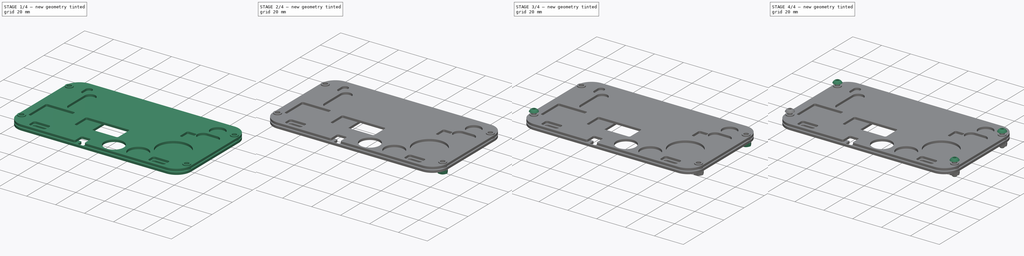
[diagram: build sequence overview — one tinted view per stage of 4, left to right]
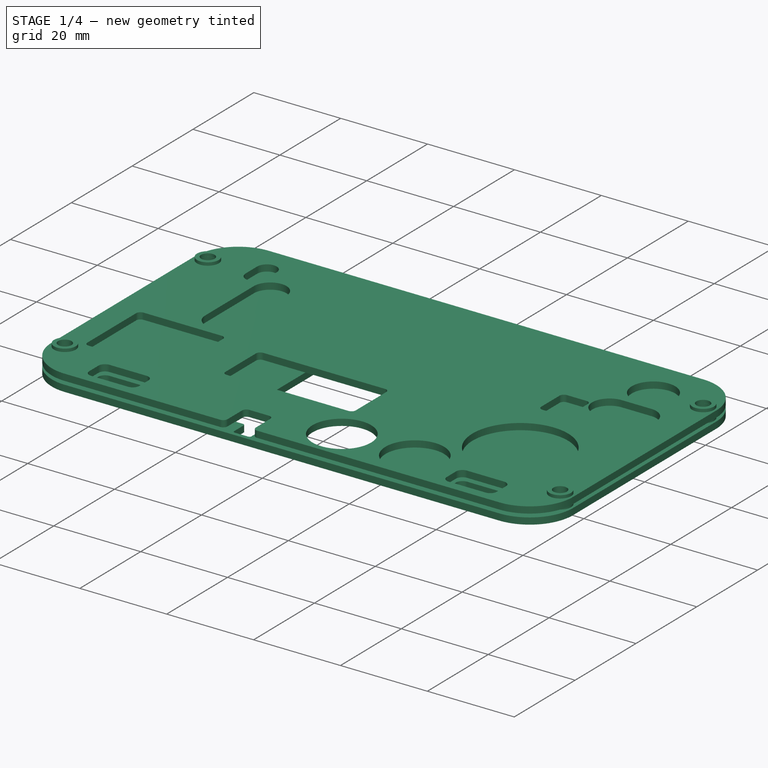
[diagram: stage 1 of 4 — iso view after this stage's code; geometry added in this stage tinted green]
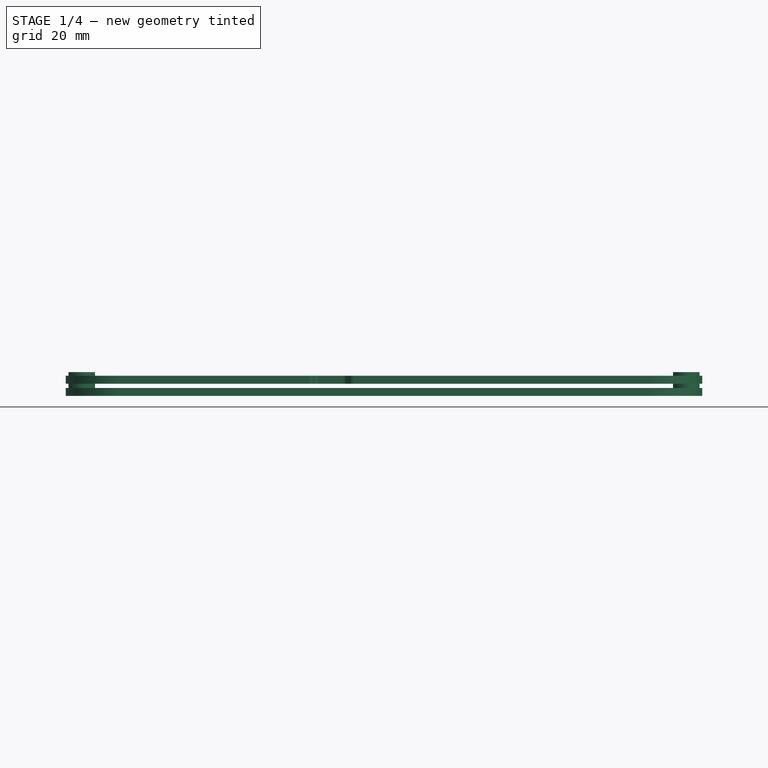
[diagram: stage 1 of 4 — front view after this stage's code; geometry added in this stage tinted green]
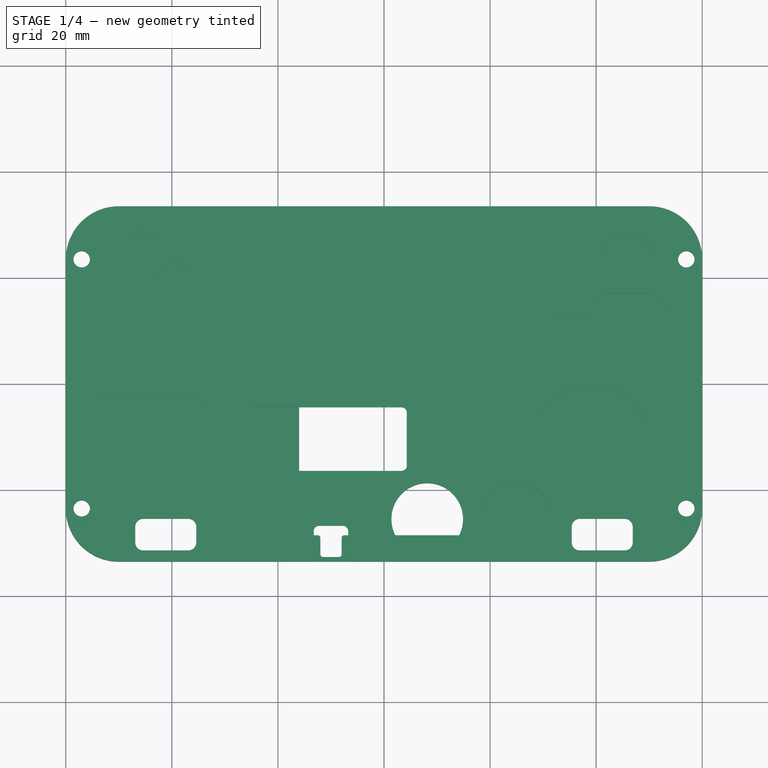
[diagram: stage 1 of 4 — top view after this stage's code; geometry added in this stage tinted green]
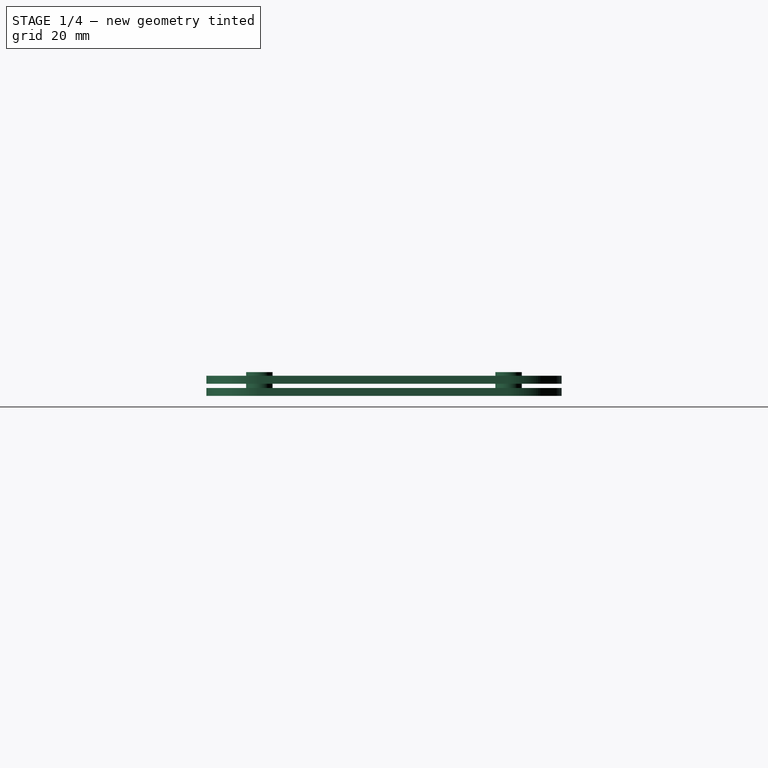
[diagram: stage 1 of 4 — right view after this stage's code; geometry added in this stage tinted green]
FCSTD DOCUMENT  (FreeCAD 0.17R13528 (Git))
Label: badge_case
License: All rights reserved
LicenseURL: http://en.wikipedia.org/wiki/All_rights_reserved
objects: Part::FeaturePython×8, Sketcher::SketchObject×3, Part::Part2DObjectPython×3, PartDesign::Body×2, Part::Extrusion×2, PartDesign::Pad×1, App::VRMLObject×1
note: 20 computed .brp shape members not serialized (recipe doc carries the construction recipe); baked Part::Feature solids carry a one-line shape summary decoded from their .brp

FEATURE [Sketcher::SketchObject] Sketch
  MapMode = 5
  Support = -> [XY_Plane047]
  sketch-geometry (76):
    g0: LineSegment StartX=-50 StartY=33.5 StartZ=0 EndX=50 EndY=33.5 EndZ=0
    g1: LineSegment StartX=60 StartY=23.5 StartZ=0 EndX=60 EndY=-23.5 EndZ=0
    g2: LineSegment StartX=50 StartY=-33.5 StartZ=0 EndX=-5.75 EndY=-33.5 EndZ=0
    g3: LineSegment StartX=-60 StartY=-23.5 StartZ=0 EndX=-60 EndY=23.5 EndZ=0
    g4: ArcOfCircle CenterX=50 CenterY=23.5 CenterZ=0 NormalX=0 NormalY=0 NormalZ=1 AngleXU=0 Radius=10 StartAngle=0 EndAngle=1.5708
    g5: ArcOfCircle CenterX=50 CenterY=-23.5 CenterZ=0 NormalX=0 NormalY=0 NormalZ=1 AngleXU=0 Radius=10 StartAngle=4.71239 EndAngle=6.28319
    g6: ArcOfCircle CenterX=-50 CenterY=-23.5 CenterZ=0 NormalX=0 NormalY=0 NormalZ=1 AngleXU=0 Radius=10 StartAngle=3.14159 EndAngle=4.71239
    g7: ArcOfCircle CenterX=-50 CenterY=23.5 CenterZ=0 NormalX=0 NormalY=0 NormalZ=1 AngleXU=0 Radius=10 StartAngle=1.5708 EndAngle=3.14159
    g8: LineSegment StartX=-12.25 StartY=-26.75 StartZ=0 EndX=-7.75 EndY=-26.75 EndZ=0
    g9: LineSegment StartX=-6.75 StartY=-27.75 StartZ=0 EndX=-6.75 EndY=-32.5 EndZ=0
    g10: LineSegment StartX=-13.25 StartY=-32.5 StartZ=0 EndX=-13.25 EndY=-27.75 EndZ=0
    g11: LineSegment StartX=-14.25 StartY=-33.5 StartZ=0 EndX=-50 EndY=-33.5 EndZ=0
    g12: LineSegment StartX=-53.5 StartY=-2.65 StartZ=0 EndX=-35.5 EndY=-2.65 EndZ=0
    g13: LineSegment StartX=-34.5 StartY=-3.65 StartZ=0 EndX=-34.5 EndY=-19.65 EndZ=0
    g14: LineSegment StartX=-35.5 StartY=-20.65 StartZ=0 EndX=-53.5 EndY=-20.65 EndZ=0
    g15: LineSegment StartX=-54.5 StartY=-19.65 StartZ=0 EndX=-54.5 EndY=-3.65 EndZ=0
    g16: LineSegment StartX=3.3 StartY=-4.4 StartZ=0 EndX=-24.7 EndY=-4.4 EndZ=0
    g17: LineSegment StartX=-25.7 StartY=-5.4 StartZ=0 EndX=-25.7 EndY=-15.4 EndZ=0
    g18: LineSegment StartX=-24.7 StartY=-16.4 StartZ=0 EndX=3.3 EndY=-16.4 EndZ=0
    g19: LineSegment StartX=4.3 StartY=-15.4 StartZ=0 EndX=4.3 EndY=-5.4 EndZ=0
    g20: Circle CenterX=8.15 CenterY=-25.5 CenterZ=0 NormalX=0 NormalY=0 NormalZ=1 AngleXU=0 Radius=6.75
    g21: Circle CenterX=24.95 CenterY=-25.5 CenterZ=0 NormalX=0 NormalY=0 NormalZ=1 AngleXU=0 Radius=6.75
    g22: Circle CenterX=39.25 CenterY=-11.25 CenterZ=0 NormalX=0 NormalY=0 NormalZ=1 AngleXU=0 Radius=11
    g23: ArcOfCircle CenterX=42.75 CenterY=13.1 CenterZ=0 NormalX=0 NormalY=0 NormalZ=1 AngleXU=0 Radius=4 StartAngle=1.5708 EndAngle=4.71239
    g24: ArcOfCircle CenterX=49.5 CenterY=13.1 CenterZ=0 NormalX=0 NormalY=0 NormalZ=1 AngleXU=0 Radius=4 StartAngle=4.71239 EndAngle=7.85398
    g25: LineSegment StartX=42.75 StartY=9.1 StartZ=0 EndX=49.5 EndY=9.1 EndZ=0
    g26: LineSegment StartX=42.75 StartY=17.1 StartZ=0 EndX=49.5 EndY=17.1 EndZ=0
    g27: Circle CenterX=45.75 CenterY=23.25 CenterZ=0 NormalX=0 NormalY=0 NormalZ=1 AngleXU=0 Radius=5
    g28: ArcOfCircle CenterX=-45.5 CenterY=26.5 CenterZ=0 NormalX=0 NormalY=0 NormalZ=1 AngleXU=0 Radius=2.25 StartAngle=0 EndAngle=3.14159
    g29: ArcOfCircle CenterX=-45.5 CenterY=22.75 CenterZ=0 NormalX=0 NormalY=0 NormalZ=1 AngleXU=0 Radius=2.25 StartAngle=3.14159 EndAngle=6.28319
    g30: LineSegment StartX=-47.75 StartY=26.5 StartZ=0 EndX=-47.75 EndY=22.75 EndZ=0
    g31: LineSegment StartX=-43.25 StartY=26.5 StartZ=0 EndX=-43.25 EndY=22.75 EndZ=0
    g32: ArcOfCircle CenterX=-39.5 CenterY=3 CenterZ=0 NormalX=0 NormalY=0 NormalZ=1 AngleXU=0 Radius=3.75 StartAngle=3.14159 EndAngle=6.28319
    g33: ArcOfCircle CenterX=-39.5 CenterY=19 CenterZ=0 NormalX=0 NormalY=0 NormalZ=1 AngleXU=0 Radius=3.75 StartAngle=0 EndAngle=3.14159
    g34: LineSegment StartX=-35.75 StartY=3 StartZ=0 EndX=-35.75 EndY=19 EndZ=0
    g35: LineSegment StartX=-43.25 StartY=3 StartZ=0 EndX=-43.25 EndY=19 EndZ=0
    g36: ArcOfCircle CenterX=-24.7 CenterY=-5.4 CenterZ=0 NormalX=0 NormalY=0 NormalZ=1 AngleXU=0 Radius=1 StartAngle=1.5708 EndAngle=3.14159
    g37: ArcOfCircle CenterX=-24.7 CenterY=-15.4 CenterZ=0 NormalX=0 NormalY=0 NormalZ=1 AngleXU=0 Radius=1 StartAngle=3.14159 EndAngle=4.71239
    g38: ArcOfCircle CenterX=3.3 CenterY=-15.4 CenterZ=0 NormalX=0 NormalY=0 NormalZ=1 AngleXU=0 Radius=1 StartAngle=4.71239 EndAngle=6.28319
    g39: ArcOfCircle CenterX=3.3 CenterY=-5.4 CenterZ=0 NormalX=0 NormalY=0 NormalZ=1 AngleXU=0 Radius=1 StartAngle=0 EndAngle=1.5708
    g40: ArcOfCircle CenterX=-53.5 CenterY=-3.65 CenterZ=0 NormalX=0 NormalY=0 NormalZ=1 AngleXU=0 Radius=1 StartAngle=1.5708 EndAngle=3.14159
    g41: ArcOfCircle CenterX=-53.5 CenterY=-19.65 CenterZ=0 NormalX=0 NormalY=0 NormalZ=1 AngleXU=0 Radius=1 StartAngle=3.14159 EndAngle=4.71239
    g42: ArcOfCircle CenterX=-35.5 CenterY=-19.65 CenterZ=0 NormalX=0 NormalY=0 NormalZ=1 AngleXU=0 Radius=1 StartAngle=4.71239 EndAngle=6.28319
    g43: ArcOfCircle CenterX=-35.5 CenterY=-3.65 CenterZ=0 NormalX=0 NormalY=0 NormalZ=1 AngleXU=0 Radius=1 StartAngle=0 EndAngle=1.5708
    g44: ArcOfCircle CenterX=-12.25 CenterY=-27.75 CenterZ=0 NormalX=0 NormalY=0 NormalZ=1 AngleXU=0 Radius=1 StartAngle=1.5708 EndAngle=3.14159
    g45: ArcOfCircle CenterX=-7.75 CenterY=-27.75 CenterZ=0 NormalX=0 NormalY=0 NormalZ=1 AngleXU=0 Radius=1 StartAngle=0 EndAngle=1.5708
    g46: ArcOfCircle CenterX=-14.25 CenterY=-32.5 CenterZ=0 NormalX=0 NormalY=0 NormalZ=1 AngleXU=0 Radius=1 StartAngle=4.71239 EndAngle=6.28319
    g47: ArcOfCircle CenterX=-5.75 CenterY=-32.5 CenterZ=0 NormalX=0 NormalY=0 NormalZ=1 AngleXU=0 Radius=1 StartAngle=3.14159 EndAngle=4.71239
    g48: LineSegment StartX=-45.4 StartY=-25.4 StartZ=0 EndX=-36.9 EndY=-25.4 EndZ=0
    g49: LineSegment StartX=-35.4 StartY=-26.9 StartZ=0 EndX=-35.4 EndY=-29.9 EndZ=0
    g50: LineSegment StartX=-36.9 StartY=-31.4 StartZ=0 EndX=-45.4 EndY=-31.4 EndZ=0
    g51: LineSegment StartX=-46.9 StartY=-29.9 StartZ=0 EndX=-46.9 EndY=-26.9 EndZ=0
    g52: LineSegment StartX=36.9 StartY=-25.4 StartZ=0 EndX=45.4 EndY=-25.4 EndZ=0
    g53: LineSegment StartX=46.9 StartY=-26.9 StartZ=0 EndX=46.9 EndY=-29.9 EndZ=0
    g54: LineSegment StartX=45.4 StartY=-31.4 StartZ=0 EndX=36.9 EndY=-31.4 EndZ=0
    g55: LineSegment StartX=35.4 StartY=-29.9 StartZ=0 EndX=35.4 EndY=-26.9 EndZ=0
    g56: ArcOfCircle CenterX=36.9 CenterY=-26.9 CenterZ=0 NormalX=0 NormalY=0 NormalZ=1 AngleXU=0 Radius=1.5 StartAngle=1.5708 EndAngle=3.14159
    g57: ArcOfCircle CenterX=36.9 CenterY=-29.9 CenterZ=0 NormalX=0 NormalY=0 NormalZ=1 AngleXU=0 Radius=1.5 StartAngle=3.14159 EndAngle=4.71239
    g58: ArcOfCircle CenterX=45.4 CenterY=-29.9 CenterZ=0 NormalX=0 NormalY=0 NormalZ=1 AngleXU=0 Radius=1.5 StartAngle=4.71239 EndAngle=6.28319
    g59: ArcOfCircle CenterX=45.4 CenterY=-26.9 CenterZ=0 NormalX=0 NormalY=0 NormalZ=1 AngleXU=0 Radius=1.5 StartAngle=0 EndAngle=1.5708
    g60: ArcOfCircle CenterX=-45.4 CenterY=-26.9 CenterZ=0 NormalX=0 NormalY=0 NormalZ=1 AngleXU=0 Radius=1.5 StartAngle=1.5708 EndAngle=3.14159
    g61: ArcOfCircle CenterX=-45.4 CenterY=-29.9 CenterZ=0 NormalX=0 NormalY=0 NormalZ=1 AngleXU=0 Radius=1.5 StartAngle=3.14159 EndAngle=4.71239
    g62: ArcOfCircle CenterX=-36.9 CenterY=-29.9 CenterZ=0 NormalX=0 NormalY=0 NormalZ=1 AngleXU=0 Radius=1.5 StartAngle=4.71239 EndAngle=6.28319
    g63: ArcOfCircle CenterX=-36.9 CenterY=-26.9 CenterZ=0 NormalX=0 NormalY=0 NormalZ=1 AngleXU=0 Radius=1.5 StartAngle=0 EndAngle=1.5708
    g64: Circle CenterX=-57 CenterY=23.46 CenterZ=0 NormalX=0 NormalY=0 NormalZ=1 AngleXU=0 Radius=1.55
    g65: Circle CenterX=-57 CenterY=-23.46 CenterZ=0 NormalX=0 NormalY=0 NormalZ=1 AngleXU=0 Radius=1.55
    g66: Circle CenterX=57 CenterY=23.46 CenterZ=0 NormalX=0 NormalY=0 NormalZ=1 AngleXU=0 Radius=1.55
    g67: Circle CenterX=57 CenterY=-23.46 CenterZ=0 NormalX=0 NormalY=0 NormalZ=1 AngleXU=0 Radius=1.55
    g68: LineSegment StartX=33 StartY=13 StartZ=0 EndX=37.5 EndY=13 EndZ=0
    g69: LineSegment StartX=38.5 StartY=12 StartZ=0 EndX=38.5 EndY=6 EndZ=0
    g70: LineSegment StartX=37.5 StartY=5 StartZ=0 EndX=33 EndY=5 EndZ=0
    g71: LineSegment StartX=32 StartY=6 StartZ=0 EndX=32 EndY=12 EndZ=0
    g72: ArcOfCircle CenterX=37.5 CenterY=12 CenterZ=0 NormalX=0 NormalY=0 NormalZ=1 AngleXU=0 Radius=1 StartAngle=0 EndAngle=1.5708
    g73: ArcOfCircle CenterX=37.5 CenterY=6 CenterZ=0 NormalX=0 NormalY=0 NormalZ=1 AngleXU=0 Radius=1 StartAngle=4.71239 EndAngle=6.28319
    g74: ArcOfCircle CenterX=33 CenterY=6 CenterZ=0 NormalX=0 NormalY=0 NormalZ=1 AngleXU=0 Radius=1 StartAngle=3.14159 EndAngle=4.71239
    g75: ArcOfCircle CenterX=33 CenterY=12 CenterZ=0 NormalX=0 NormalY=0 NormalZ=1 AngleXU=0 Radius=1 StartAngle=1.5708 EndAngle=3.14159
  constraints (189):
    c: Horizontal(g0)
    c: Horizontal(g2)
    c: Vertical(g1)
    c: Vertical(g3)
    c: Tangent(g1,g4) = 1.5708
    c: Tangent(g0,g4) = 1.5708
    c: Tangent(g1,g5) = 1.5708
    c: Tangent(g2,g5) = 1.5708
    c: Coincident(g11,g6) = 1.5708
    c: Tangent(g3,g6) = 1.5708
    c: Tangent(g3,g7) = 1.5708
    c: Tangent(g0,g7) = 1.5708
    c: DistanceY(g11,g0) = 67
    c: DistanceX(g3,g1) = 120
    c: Radius(g6) = 10
    c: Equal(g6,g7)
    c: Equal(g6,g4)
    c: Equal(g6,g5)
    c: Symmetric(g0,g11,g-1)
    c: Symmetric(g3,g1,g-2)
    c: Horizontal(g8)
    c: Vertical(g9)
    c: Vertical(g10)
    c: Tangent(g2,g11)
    c: Horizontal(g12)
    c: Horizontal(g14)
    c: Vertical(g13)
    c: Vertical(g15)
    c: Horizontal(g16)
    c: Vertical(g17)
    c: Horizontal(g18)
    c: Vertical(g19)
    c: Radius(g21) = 6.75
    c: Equal(g21,g20)
    c: DistanceY(g21,g20) = 0
    c: DistanceX(g20,g21) = 16.8
    c: DistanceX(g-1,g20) = 8.15
    c: DistanceY(g20,g-1) = 25.5
    c: Radius(g22) = 11
    c: DistanceX(g-1,g22) = 39.25
    c: DistanceY(g22,g-1) = 11.25
    c: Tangent(g23,g26) = 1.5708
    c: Tangent(g23,g25) = -1.5708
    c: Tangent(g25,g24) = -1.5708
    c: Tangent(g26,g24) = 1.5708
    c: Horizontal(g25)
    c: Equal(g23,g24)
    c: Radius(g23) = 4
    c: DistanceX(g23,g24) = 6.75
    c: DistanceY(g-1,g24) = 13.1
    c: DistanceX(g-1,g24) = 49.5
    c: Radius(g27) = 5
    c: DistanceX(g-1,g27) = 45.75
    c: DistanceY(g-1,g27) = 23.25
    c: Tangent(g28,g31) = 1.5708
    c: Tangent(g28,g30) = -1.5708
    c: Tangent(g30,g29) = -1.5708
    c: Tangent(g31,g29) = 1.5708
    c: Vertical(g30)
    c: Equal(g28,g29)
    c: Radius(g28) = 2.25
    c: DistanceY(g29,g28) = 3.75
    c: DistanceX(g28,g-1) = 45.5
    c: DistanceY(g-1,g28) = 26.5
    c: Tangent(g32,g35) = 1.5708
    c: Tangent(g32,g34) = -1.5708
    c: Tangent(g34,g33) = -1.5708
    c: Tangent(g35,g33) = 1.5708
    c: Vertical(g34)
    c: Equal(g32,g33)
    c: Radius(g33) = 3.75
    c: DistanceY(g32,g33) = 16
    c: DistanceX(g33,g-1) = 39.5
    c: DistanceY(g-1,g32) = 3
    c: Tangent(g16,g36) = -1.5708
    c: Tangent(g17,g36) = -1.5708
    c: Tangent(g17,g37) = -1.5708
    c: Tangent(g18,g37) = -1.5708
    c: Tangent(g18,g38) = -1.5708
    c: Tangent(g19,g38) = -1.5708
    c: Tangent(g19,g39) = -1.5708
    c: Tangent(g16,g39) = -1.5708
    c: DistanceY(g18,g16) = 12
    c: DistanceX(g17,g19) = 30
    c: DistanceX(g-1,g19) = 4.3
    c: DistanceY(g16,g-1) = 4.4
    c: Radius(g36) = 1
    c: Equal(g36,g37)
    c: Equal(g36,g38)
    c: Equal(g36,g39)
    c: Tangent(g12,g40) = 1.5708
    c: Tangent(g15,g40) = 1.5708
    c: Tangent(g15,g41) = 1.5708
    c: Tangent(g14,g41) = 1.5708
    c: Tangent(g14,g42) = 1.5708
    c: Tangent(g13,g42) = 1.5708
    c: Tangent(g13,g43) = 1.5708
    c: Tangent(g12,g43) = 1.5708
    c: DistanceX(g15,g13) = 20
    c: DistanceY(g14,g12) = 18
    c: DistanceY(g12,g-1) = 2.65
    c: DistanceX(g15,g-1) = 54.5
    c: Radius(g40) = 1
    c: Equal(g40,g41)
    c: Equal(g40,g42)
    c: Equal(g40,g43)
    c: Tangent(g8,g44) = 1.5708
    c: Tangent(g10,g44) = 1.5708
    c: Tangent(g8,g45) = 1.5708
    c: Tangent(g9,g45) = 1.5708
    c: DistanceX(g10,g9) = 6.5
    c: Tangent(g10,g46) = -1.5708
    c: Tangent(g11,g46) = 1.5708
    c: Tangent(g9,g47) = -1.5708
    c: Tangent(g2,g47) = 1.5708
    c: DistanceY(g2,g8) = 6.75
    c: DistanceX(g9,g-1) = 6.75
    c: Radius(g46) = 1
    c: Equal(g46,g44)
    c: Equal(g46,g45)
    c: Equal(g46,g47)
    c: Horizontal(g48)
    c: Horizontal(g50)
    c: Vertical(g49)
    c: Vertical(g51)
    c: Horizontal(g52)
    c: Horizontal(g54)
    c: Vertical(g53)
    c: Vertical(g55)
    c: Tangent(g52,g56) = 1.5708
    c: Tangent(g55,g56) = 1.5708
    c: Tangent(g55,g57) = 1.5708
    c: Tangent(g54,g57) = 1.5708
    c: Tangent(g54,g58) = 1.5708
    c: Tangent(g53,g58) = 1.5708
    c: Tangent(g53,g59) = 1.5708
    c: Tangent(g52,g59) = 1.5708
    c: DistanceX(g55,g53) = 11.5
    c: DistanceY(g54,g52) = 6
    c: Radius(g56) = 1.5
    c: Equal(g56,g57)
    c: Equal(g56,g58)
    c: Equal(g56,g59)
    c: DistanceX(g-1,g55) = 35.4
    c: DistanceY(g2,g54) = 2.1
    c: Tangent(g48,g60) = 1.5708
    c: Tangent(g51,g60) = 1.5708
    c: Tangent(g50,g61) = 1.5708
    c: Tangent(g51,g61) = 1.5708
    c: Tangent(g50,g62) = 1.5708
    c: Tangent(g49,g62) = 1.5708
    c: Tangent(g49,g63) = 1.5708
    c: Tangent(g48,g63) = 1.5708
    c: DistanceX(g51,g49) = 11.5
    c: DistanceY(g50,g48) = 6
    c: Radius(g60) = 1.5
    c: Equal(g60,g61)
    c: Equal(g60,g62)
    c: Equal(g60,g63)
    c: DistanceY(g6,g50) = 2.1
    c: DistanceX(g49,g-1) = 35.4
    c: Radius(g64) = 1.55
    c: Equal(g64,g65)
    c: Equal(g64,g67)
    c: Equal(g64,g66)
    c: Symmetric(g64,g66,g-2)
    c: Symmetric(g67,g65,g-2)
    c: Symmetric(g65,g64,g-1)
    c: DistanceX(g65,g67) = 114
    c: Horizontal(g68)
    c: Horizontal(g70)
    c: Vertical(g69)
    c: Vertical(g71)
    c: Tangent(g68,g72) = 1.5708
    c: Tangent(g69,g72) = 1.5708
    c: Tangent(g70,g73) = 1.5708
    c: Tangent(g69,g73) = 1.5708
    c: Tangent(g70,g74) = 1.5708
    c: Tangent(g71,g74) = 1.5708
    c: Tangent(g68,g75) = 1.5708
    c: Tangent(g71,g75) = 1.5708
    c: Radius(g75) = 1
    c: Equal(g75,g72)
    c: Equal(g75,g73)
    c: Equal(g75,g74)
    c: DistanceX(g71,g69) = 6.5
    c: DistanceY(g70,g68) = 8
    c: DistanceX(g-1,g71) = 32
    c: DistanceY(g-1,g70) = 5
FEATURE [PartDesign::Pad] Pad
  Length = 1.5
  Length2 = 100
  Profile = -> Sketch
  Refine = true
  Type = 0
FEATURE [PartDesign::Body] Body  label="Body_top"
  Group = -> [Sketch,Pad]
  Origin = -> Origin047
  Placement = pos=(0,0,2.2) rot=(0,0,1;0rad)
  Tip = -> Pad
FEATURE [Sketcher::SketchObject] Sketch001
  MapMode = 5
  Support = -> [XY_Plane047]
  sketch-geometry (40):
    g0: LineSegment StartX=-50 StartY=33.5 StartZ=0 EndX=50 EndY=33.5 EndZ=0
    g1: LineSegment StartX=60 StartY=23.5 StartZ=0 EndX=60 EndY=-23.5 EndZ=0
    g2: LineSegment StartX=50 StartY=-33.5 StartZ=0 EndX=-50 EndY=-33.5 EndZ=0
    g3: LineSegment StartX=-60 StartY=-23.5 StartZ=0 EndX=-60 EndY=23.5 EndZ=0
    g4: ArcOfCircle CenterX=50 CenterY=23.5 CenterZ=0 NormalX=0 NormalY=0 NormalZ=1 AngleXU=0 Radius=10 StartAngle=0 EndAngle=1.5708
    g5: ArcOfCircle CenterX=50 CenterY=-23.5 CenterZ=0 NormalX=0 NormalY=0 NormalZ=1 AngleXU=0 Radius=10 StartAngle=4.71239 EndAngle=6.28319
    g6: ArcOfCircle CenterX=-50 CenterY=-23.5 CenterZ=0 NormalX=0 NormalY=0 NormalZ=1 AngleXU=0 Radius=10 StartAngle=3.14159 EndAngle=4.71239
    g7: ArcOfCircle CenterX=-50 CenterY=23.5 CenterZ=0 NormalX=0 NormalY=0 NormalZ=1 AngleXU=0 Radius=10 StartAngle=1.5708 EndAngle=3.14159
    g8: LineSegment StartX=-45.4 StartY=-25.4 StartZ=0 EndX=-36.9 EndY=-25.4 EndZ=0
    g9: LineSegment StartX=-35.4 StartY=-26.9 StartZ=0 EndX=-35.4 EndY=-29.9 EndZ=0
    g10: LineSegment StartX=-36.9 StartY=-31.4 StartZ=0 EndX=-45.4 EndY=-31.4 EndZ=0
    g11: LineSegment StartX=-46.9 StartY=-29.9 StartZ=0 EndX=-46.9 EndY=-26.9 EndZ=0
    g12: LineSegment StartX=36.9 StartY=-25.4 StartZ=0 EndX=45.4 EndY=-25.4 EndZ=0
    g13: LineSegment StartX=46.9 StartY=-26.9 StartZ=0 EndX=46.9 EndY=-29.9 EndZ=0
    g14: LineSegment StartX=45.4 StartY=-31.4 StartZ=0 EndX=36.9 EndY=-31.4 EndZ=0
    g15: LineSegment StartX=35.4 StartY=-29.9 StartZ=0 EndX=35.4 EndY=-26.9 EndZ=0
    g16: ArcOfCircle CenterX=36.9 CenterY=-26.9 CenterZ=0 NormalX=0 NormalY=0 NormalZ=1 AngleXU=0 Radius=1.5 StartAngle=1.5708 EndAngle=3.14159
    g17: ArcOfCircle CenterX=36.9 CenterY=-29.9 CenterZ=0 NormalX=0 NormalY=0 NormalZ=1 AngleXU=0 Radius=1.5 StartAngle=3.14159 EndAngle=4.71239
    g18: ArcOfCircle CenterX=45.4 CenterY=-29.9 CenterZ=0 NormalX=0 NormalY=0 NormalZ=1 AngleXU=0 Radius=1.5 StartAngle=4.71239 EndAngle=6.28319
    g19: ArcOfCircle CenterX=45.4 CenterY=-26.9 CenterZ=0 NormalX=0 NormalY=0 NormalZ=1 AngleXU=0 Radius=1.5 StartAngle=0 EndAngle=1.5708
    g20: ArcOfCircle CenterX=-45.4 CenterY=-26.9 CenterZ=0 NormalX=0 NormalY=0 NormalZ=1 AngleXU=0 Radius=1.5 StartAngle=1.5708 EndAngle=3.14159
    g21: ArcOfCircle CenterX=-45.4 CenterY=-29.9 CenterZ=0 NormalX=0 NormalY=0 NormalZ=1 AngleXU=0 Radius=1.5 StartAngle=3.14159 EndAngle=4.71239
    g22: ArcOfCircle CenterX=-36.9 CenterY=-29.9 CenterZ=0 NormalX=0 NormalY=0 NormalZ=1 AngleXU=0 Radius=1.5 StartAngle=4.71239 EndAngle=6.28319
    g23: ArcOfCircle CenterX=-36.9 CenterY=-26.9 CenterZ=0 NormalX=0 NormalY=0 NormalZ=1 AngleXU=0 Radius=1.5 StartAngle=0 EndAngle=1.5708
    g24: LineSegment StartX=16 StartY=31.5 StartZ=0 EndX=-16 EndY=31.5 EndZ=0
    g25: LineSegment StartX=-16 StartY=31.5 StartZ=0 EndX=-16 EndY=-28.5 EndZ=0
    g26: LineSegment StartX=-16 StartY=-28.5 StartZ=0 EndX=-12.5 EndY=-28.5 EndZ=0
    g27: LineSegment StartX=16 StartY=-28.5 StartZ=0 EndX=16 EndY=31.5 EndZ=0
    g28: LineSegment StartX=-8 StartY=-29 StartZ=0 EndX=-8 EndY=-32.1 EndZ=0
    g29: LineSegment StartX=-8.5 StartY=-32.6 StartZ=0 EndX=-11.5 EndY=-32.6 EndZ=0
    g30: LineSegment StartX=-12 StartY=-32.1 StartZ=0 EndX=-12 EndY=-29 EndZ=0
    g31: ArcOfCircle CenterX=-8.5 CenterY=-32.1 CenterZ=0 NormalX=0 NormalY=0 NormalZ=1 AngleXU=0 Radius=0.5 StartAngle=4.71239 EndAngle=6.28319
    g32: ArcOfCircle CenterX=-11.5 CenterY=-32.1 CenterZ=0 NormalX=0 NormalY=0 NormalZ=1 AngleXU=0 Radius=0.5 StartAngle=3.14159 EndAngle=4.71239
    g33: LineSegment StartX=-7.5 StartY=-28.5 StartZ=0 EndX=16 EndY=-28.5 EndZ=0
    g34: ArcOfCircle CenterX=-12.5 CenterY=-29 CenterZ=0 NormalX=0 NormalY=0 NormalZ=1 AngleXU=0 Radius=0.5 StartAngle=0 EndAngle=1.5708
    g35: ArcOfCircle CenterX=-7.5 CenterY=-29 CenterZ=0 NormalX=0 NormalY=0 NormalZ=1 AngleXU=0 Radius=0.5 StartAngle=1.5708 EndAngle=3.14159
    g36: Circle CenterX=-57 CenterY=23.5 CenterZ=0 NormalX=0 NormalY=0 NormalZ=1 AngleXU=0 Radius=1.55
    g37: Circle CenterX=-57 CenterY=-23.5 CenterZ=0 NormalX=0 NormalY=0 NormalZ=1 AngleXU=0 Radius=1.55
    g38: Circle CenterX=57 CenterY=23.5 CenterZ=0 NormalX=0 NormalY=0 NormalZ=1 AngleXU=0 Radius=1.55
    g39: Circle CenterX=57 CenterY=-23.5 CenterZ=0 NormalX=0 NormalY=0 NormalZ=1 AngleXU=0 Radius=1.55
  constraints (100):
    c: Horizontal(g0)
    c: Horizontal(g2)
    c: Vertical(g1)
    c: Vertical(g3)
    c: Tangent(g1,g4) = 1.5708
    c: Tangent(g0,g4) = 1.5708
    c: Tangent(g1,g5) = 1.5708
    c: Tangent(g2,g5) = 1.5708
    c: Tangent(g3,g6) = 1.5708
    c: Tangent(g3,g7) = 1.5708
    c: Tangent(g0,g7) = 1.5708
    c: DistanceY(g6,g0) = 67
    c: DistanceX(g3,g1) = 120
    c: Radius(g6) = 10
    c: Equal(g6,g7)
    c: Equal(g6,g4)
    c: Equal(g6,g5)
    c: Symmetric(g0,g6,g-1)
    c: Symmetric(g3,g1,g-2)
    c: Horizontal(g8)
    c: Horizontal(g10)
    c: Vertical(g9)
    c: Vertical(g11)
    c: Horizontal(g12)
    c: Horizontal(g14)
    c: Vertical(g13)
    c: Vertical(g15)
    c: Tangent(g12,g16) = 1.5708
    c: Tangent(g15,g16) = 1.5708
    c: Tangent(g15,g17) = 1.5708
    c: Tangent(g14,g17) = 1.5708
    c: Tangent(g14,g18) = 1.5708
    c: Tangent(g13,g18) = 1.5708
    c: Tangent(g13,g19) = 1.5708
    c: Tangent(g12,g19) = 1.5708
    c: DistanceX(g15,g13) = 11.5
    c: DistanceY(g14,g12) = 6
    c: Radius(g16) = 1.5
    c: Equal(g16,g17)
    c: Equal(g16,g18)
    c: Equal(g16,g19)
    c: DistanceX(g-1,g15) = 35.4
    c: DistanceY(g2,g14) = 2.1
    c: Tangent(g8,g20) = 1.5708
    c: Tangent(g11,g20) = 1.5708
    c: Tangent(g10,g21) = 1.5708
    c: Tangent(g11,g21) = 1.5708
    c: Tangent(g10,g22) = 1.5708
    c: Tangent(g9,g22) = 1.5708
    c: Tangent(g9,g23) = 1.5708
    c: Tangent(g8,g23) = 1.5708
    c: DistanceX(g11,g9) = 11.5
    c: DistanceY(g10,g8) = 6
    c: Radius(g20) = 1.5
    c: Equal(g20,g21)
    c: Equal(g20,g22)
    c: Equal(g20,g23)
    c: DistanceY(g6,g10) = 2.1
    c: DistanceX(g9,g-1) = 35.4
    c: Coincident(g2,g6)
    c: Coincident(g24,g25)
    c: Coincident(g25,g26)
    c: Coincident(g33,g27)
    c: Coincident(g27,g24)
    c: Horizontal(g24)
    c: Horizontal(g26)
    c: Vertical(g25)
    c: Vertical(g27)
    c: DistanceX(g24,g24) = 32
    c: DistanceY(g25,g25) = 60
    c: Symmetric(g24,g24,g-2)
    c: DistanceY(g33,g-1) = 28.5
    c: Horizontal(g29)
    c: Vertical(g28)
    c: Vertical(g30)
    c: Tangent(g29,g31) = 1.5708
    c: Tangent(g28,g31) = 1.5708
    c: Tangent(g29,g32) = 1.5708
    c: Tangent(g30,g32) = 1.5708
    c: Tangent(g26,g33)
    c: Tangent(g26,g34) = 1.5708
    c: Tangent(g30,g34) = -1.5708
    c: Tangent(g28,g35) = -1.5708
    c: Tangent(g33,g35) = 1.5708
    c: DistanceX(g30,g28) = 4
    c: DistanceY(g29,g33) = 4.1
    c: Radius(g34) = 0.5
    c: Equal(g34,g32)
    c: Equal(g34,g31)
    c: Equal(g34,g35)
    c: DistanceX(g25,g30) = 4
    c: Radius(g36) = 1.55
    c: Equal(g36,g37)
    c: Equal(g36,g39)
    c: Equal(g36,g38)
    c: Symmetric(g36,g38,g-2)
    c: Symmetric(g37,g39,g-2)
    c: Symmetric(g38,g39,g-1)
    c: DistanceX(g36,g38) = 114
    c: DistanceY(g39,g38) = 47
FEATURE [Part::Extrusion] Extrude  label="Extrude_bot"
  Base = -> Sketch001
  Dir = (0,0,1)
  DirMode = 2
  FaceMakerClass = Part::FaceMakerBullseye
  LengthFwd = 1.5
  LengthRev = 0
  Placement = pos=(0,0,-0.8) rot=(0,0,1;0rad)
  Reversed = true
  Solid = true
  Symmetric = false
FEATURE [Sketcher::SketchObject] Sketch002
  MapMode = 5
  Support = -> [XY_Plane048]
  sketch-geometry (8):
    g0: Circle CenterX=-57 CenterY=23.5 CenterZ=0 NormalX=0 NormalY=0 NormalZ=1 AngleXU=0 Radius=2.5
    g1: Circle CenterX=-57 CenterY=-23.5 CenterZ=0 NormalX=0 NormalY=0 NormalZ=1 AngleXU=0 Radius=2.5
    g2: Circle CenterX=57 CenterY=-23.5 CenterZ=0 NormalX=0 NormalY=0 NormalZ=1 AngleXU=0 Radius=2.5
    g3: Circle CenterX=57 CenterY=23.5 CenterZ=0 NormalX=0 NormalY=0 NormalZ=1 AngleXU=0 Radius=2.5
    g4: Circle CenterX=-57 CenterY=23.5 CenterZ=0 NormalX=0 NormalY=0 NormalZ=1 AngleXU=0 Radius=1.55
    g5: Circle CenterX=-57 CenterY=-23.5 CenterZ=0 NormalX=0 NormalY=0 NormalZ=1 AngleXU=0 Radius=1.55
    g6: Circle CenterX=57 CenterY=-23.5 CenterZ=0 NormalX=0 NormalY=0 NormalZ=1 AngleXU=0 Radius=1.55
    g7: Circle CenterX=57 CenterY=23.5 CenterZ=0 NormalX=0 NormalY=0 NormalZ=1 AngleXU=0 Radius=1.55
  constraints (17):
    c: Radius(g0) = 2.5
    c: Equal(g0,g1)
    c: Equal(g0,g2)
    c: Equal(g0,g3)
    c: Symmetric(g0,g3,g-2)
    c: Symmetric(g1,g2,g-2)
    c: Symmetric(g3,g2,g-1)
    c: DistanceX(g1,g2) = 114
    c: DistanceY(g1,g0) = 47
    c: Radius(g6) = 1.55
    c: Equal(g6,g5)
    c: Equal(g6,g4)
    c: Equal(g6,g7)
    c: Coincident(g4,g0)
    c: Coincident(g1,g5)
    c: Coincident(g6,g2)
    c: Coincident(g7,g3)
FEATURE [PartDesign::Body] Body001
  Group = -> [Sketch002]
  Origin = -> Origin048
  Placement = pos=(0,0,-0.8) rot=(0,0,1;0rad)
FEATURE [Part::Extrusion] Extrude001  label="Extrude_spacer"
  Base = -> Sketch002
  Dir = (0,0,1)
  DirMode = 2
  FaceMakerClass = Part::FaceMakerBullseye
  LengthFwd = 3
  LengthRev = 0
  Placement = pos=(0,0,-0.8) rot=(0,0,1;0rad)
  Solid = true
  Symmetric = false
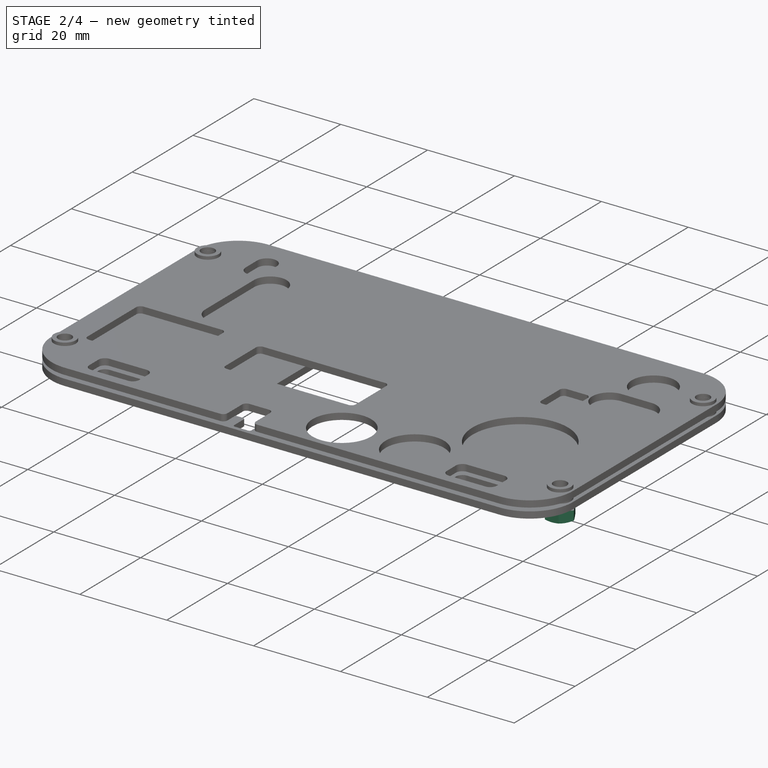
[diagram: stage 2 of 4 — iso view after this stage's code; geometry added in this stage tinted green]
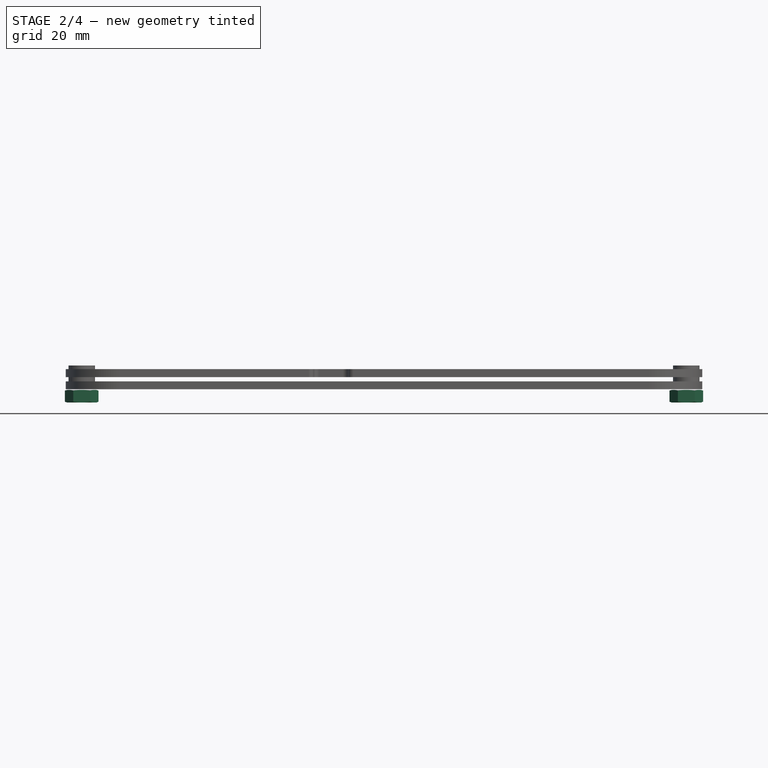
[diagram: stage 2 of 4 — front view after this stage's code; geometry added in this stage tinted green]
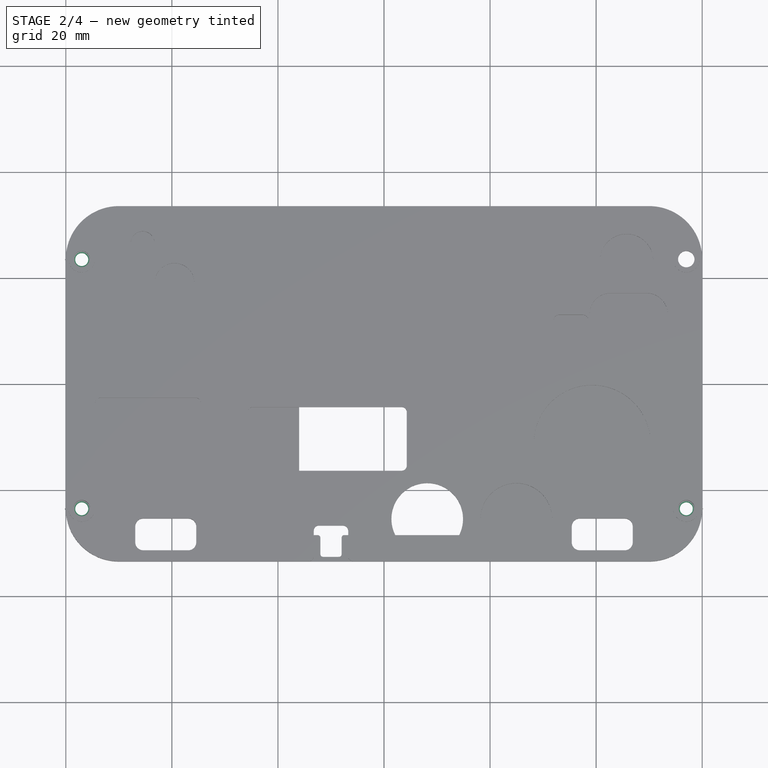
[diagram: stage 2 of 4 — top view after this stage's code; geometry added in this stage tinted green]
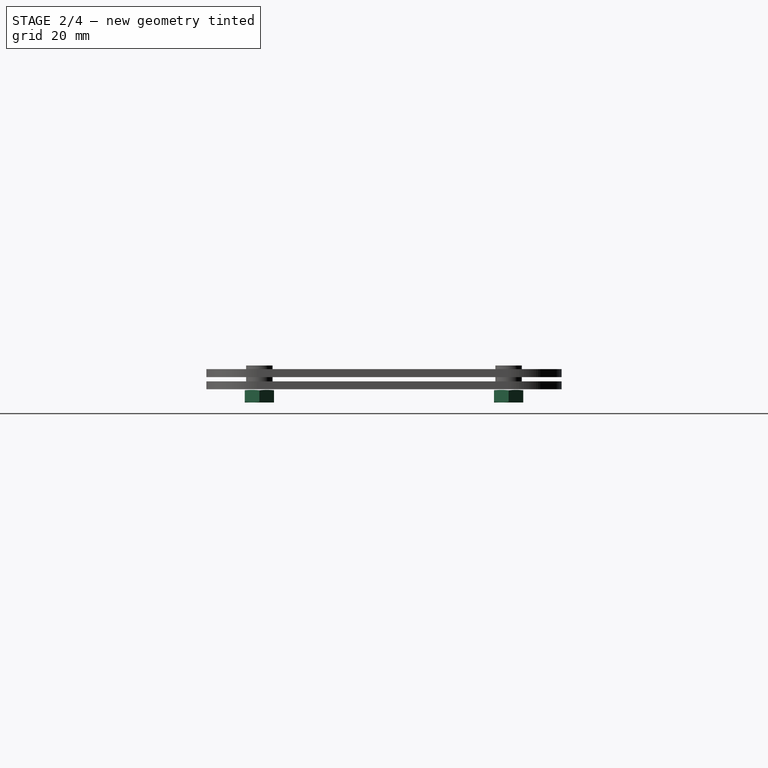
[diagram: stage 2 of 4 — right view after this stage's code; geometry added in this stage tinted green]
FEATURE [Part::FeaturePython] Nut001  label="M3-Nut004"  # Fasteners workbench fastener (typed FeaturePython)
  Placement = pos=(57,-23.5,-4.8) rot=(0,0,1;0rad)
  diameter = 4
  invert = false
  matchOuter = false
  offset = 0
  thread = false
  type = 1
FEATURE [Part::FeaturePython] Nut002  label="M3-Nut005"  # Fasteners workbench fastener (typed FeaturePython)
  Placement = pos=(-57,23.5,-4.8) rot=(0,0,1;0rad)
  diameter = 4
  invert = false
  matchOuter = false
  offset = 0
  thread = false
  type = 1
FEATURE [Part::FeaturePython] Nut003  label="M3-Nut006"  # Fasteners workbench fastener (typed FeaturePython)
  Placement = pos=(-57,-23.5,-4.8) rot=(0,0,1;0rad)
  diameter = 4
  invert = false
  matchOuter = false
  offset = 0
  thread = false
  type = 1
FEATURE [Part::Part2DObjectPython] Shape2DView002  label="Shape2DView_spacer"  # Draft 2D object (typed FeaturePython)
  Base = -> Extrude001
  HiddenLines = false
  InPlace = true
  Projection = (0,0,1)
  ProjectionMode = 0
  SegmentLength = 0.05
  Tessellation = false
  VisibleOnly = false
FEATURE [App::VRMLObject] oshw2018badgeprototype
  Resources = oshw2018badgeprototype/shapes3D/PinHeader_2x03_P2.54mm_Vertical.wrl | oshw2018badgeprototype/shapes3D/batt_holder_2xAA.wrl | oshw2018badgeprototype/shapes3D/PinHeader_2x02_P2.54mm_Vertical.wrl | oshw2018badgeprototype/shapes3D/4x4_SMD_Switch.wrl | oshw2018badgeprototype/shapes3D/CP_Elec_6.3x5.7.wrl | oshw2018badgeprototype/shapes3D/D_SOD-123.wrl | oshw2018badgeprototype/shapes3D/L_1812_4532Metric.wrl | oshw2018badgeprototype/shapes3D/D_SOT-23.wrl | oshw2018badgeprototype/shapes3D/SOT-25_SOT-95.wrl | oshw2018badgeprototype/shapes3D/LGA16R50P4X4_200X200X100.wrl | oshw2018badgeprototype/shapes3D/DFN-6-1EP_3x3mm_P0.95mm_EP1.7x2.6mm.wrl | oshw2018badgeprototype/shapes3D/FCC_molex_52435-2471_sp.wrl | oshw2018badgeprototype/shapes3D/TSOT-23.wrl | oshw2018badgeprototype/shapes3D/sd_card_051620001.wrl | oshw2018badgeprototype/shapes3D/esp-wroom-32.wrl | oshw2018badgeprototype/shapes3D/C_0603_1608Metric.wrl | oshw2018badgeprototype/shapes3D/R_0603_1608Metric.wrl
FEATURE [Part::Part2DObjectPython] Shape2DView  label="Shape2DView_top"  # Draft 2D object (typed FeaturePython)
  Base = -> Body
  HiddenLines = false
  InPlace = true
  Projection = (0,0,1)
  ProjectionMode = 0
  SegmentLength = 0.05
  Tessellation = false
  VisibleOnly = false
FEATURE [Part::Part2DObjectPython] Shape2DView003  label="Shape2DView_bot"  # Draft 2D object (typed FeaturePython)
  Base = -> Extrude
  HiddenLines = false
  InPlace = true
  Projection = (0,0,1)
  ProjectionMode = 0
  SegmentLength = 0.05
  Tessellation = false
  VisibleOnly = false
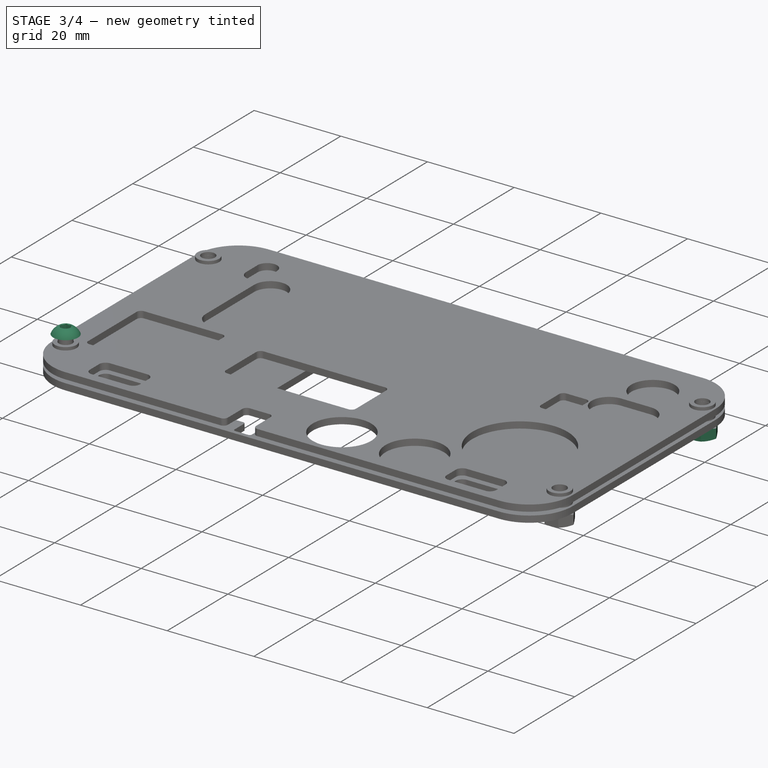
[diagram: stage 3 of 4 — iso view after this stage's code; geometry added in this stage tinted green]
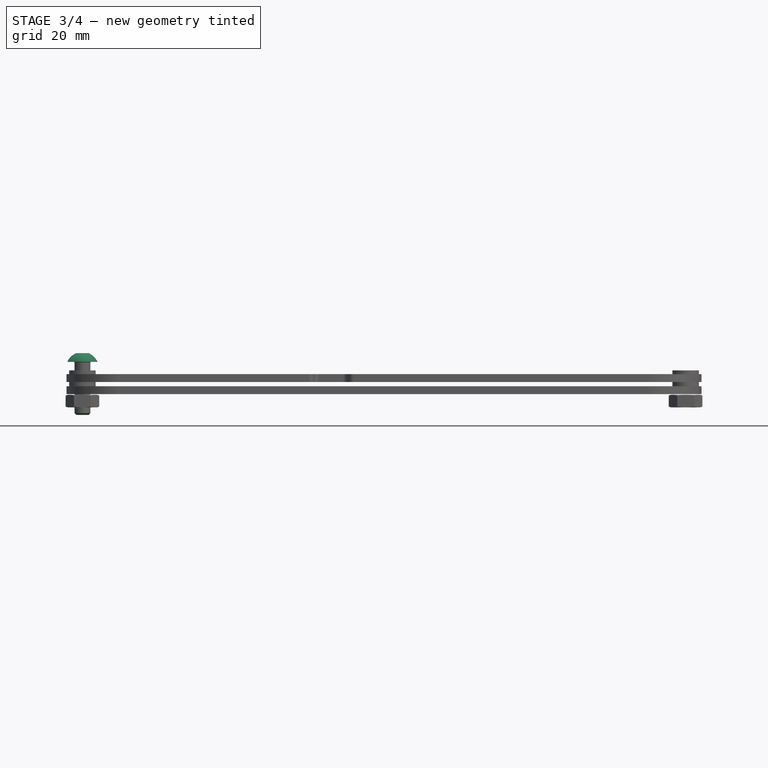
[diagram: stage 3 of 4 — front view after this stage's code; geometry added in this stage tinted green]
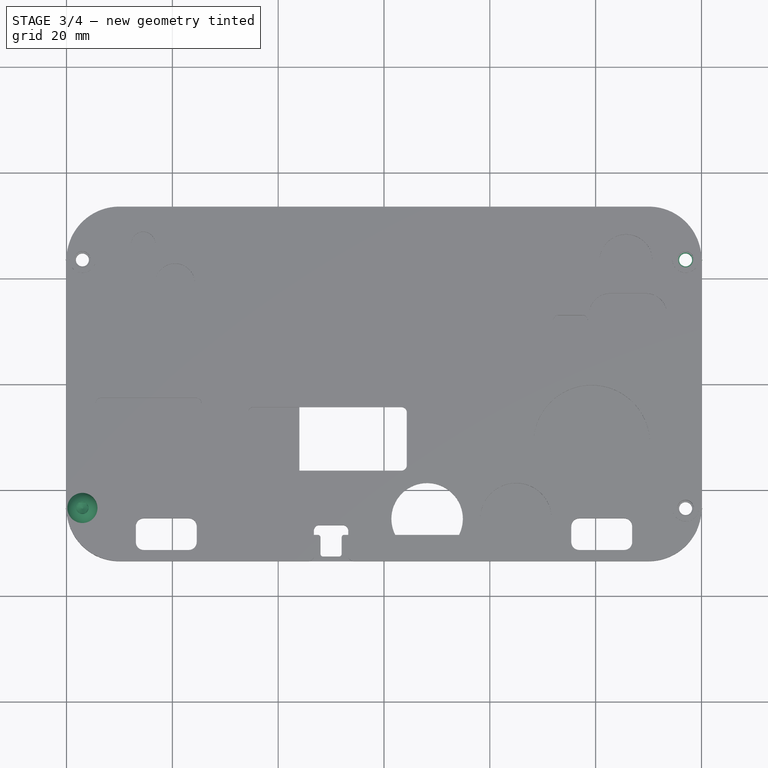
[diagram: stage 3 of 4 — top view after this stage's code; geometry added in this stage tinted green]
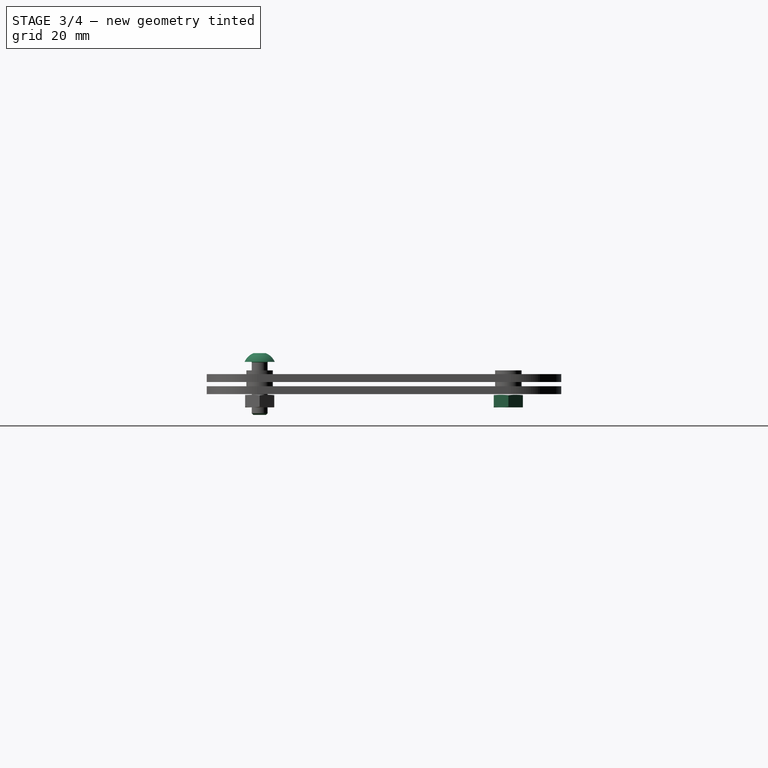
[diagram: stage 3 of 4 — right view after this stage's code; geometry added in this stage tinted green]
FEATURE [Part::FeaturePython] Screw003  label="M3x10-Screw003"  # Fasteners workbench fastener (typed FeaturePython)
  Placement = pos=(-57,-23.5,3.8) rot=(0,0,1;0rad)
  diameter = 1
  invert = false
  length = 2
  matchOuter = false
  offset = 0
  thread = false
  type = 20
FEATURE [Part::FeaturePython] Nut  label="M3-Nut"  # Fasteners workbench fastener (typed FeaturePython)
  Placement = pos=(57,23.5,-4.8) rot=(0,0,1;0rad)
  diameter = 4
  invert = false
  matchOuter = false
  offset = 0
  thread = false
  type = 1
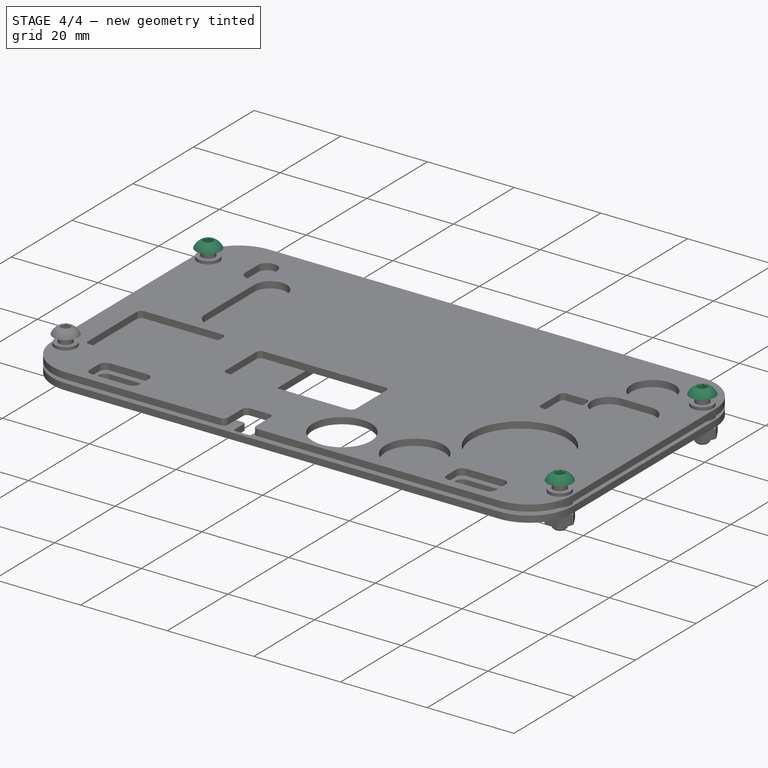
[diagram: stage 4 of 4 — iso view after this stage's code; geometry added in this stage tinted green]
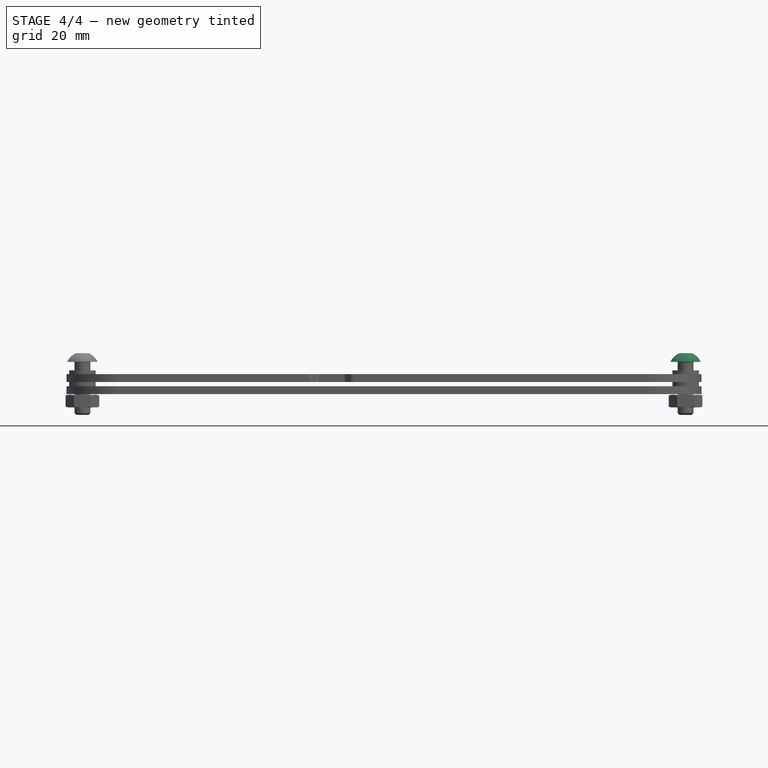
[diagram: stage 4 of 4 — front view after this stage's code; geometry added in this stage tinted green]
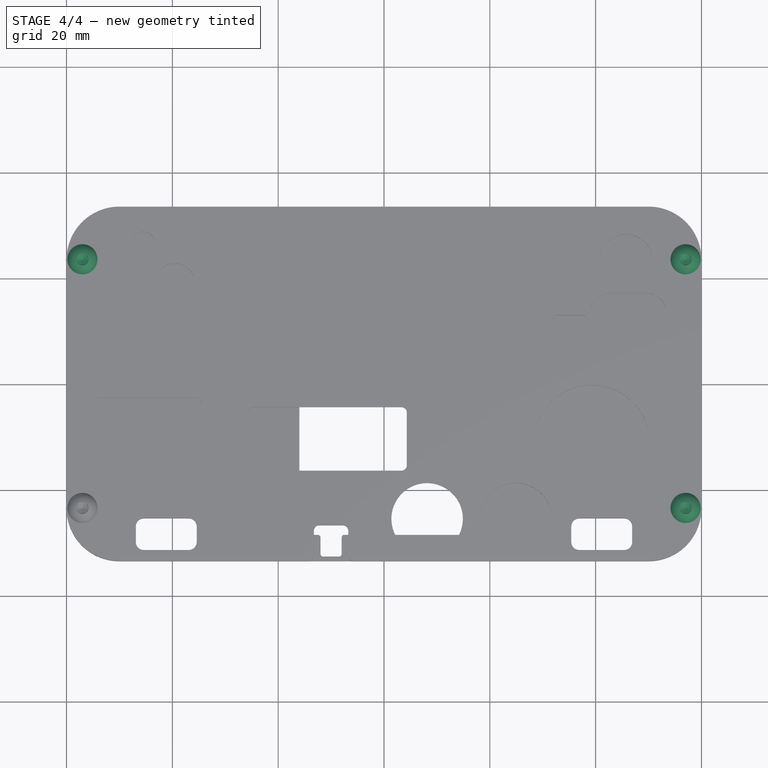
[diagram: stage 4 of 4 — top view after this stage's code; geometry added in this stage tinted green]
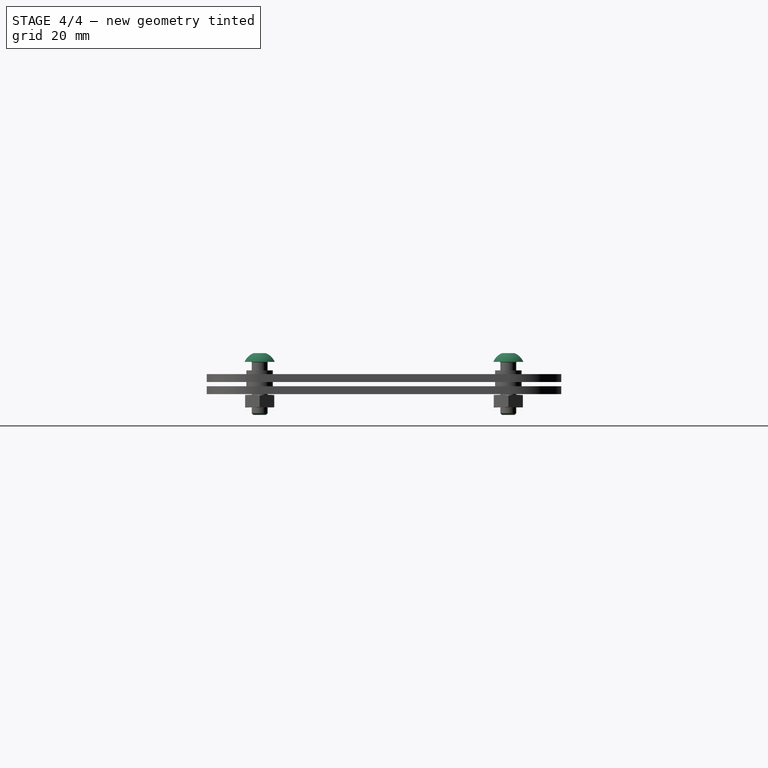
[diagram: stage 4 of 4 — right view after this stage's code; geometry added in this stage tinted green]
FEATURE [Part::FeaturePython] Screw  label="M3x10-Screw"  # Fasteners workbench fastener (typed FeaturePython)
  Placement = pos=(57,23.5,3.8) rot=(0,0,1;0rad)
  diameter = 1
  invert = false
  length = 2
  matchOuter = false
  offset = 0
  thread = false
  type = 20
FEATURE [Part::FeaturePython] Screw001  label="M3x10-Screw001"  # Fasteners workbench fastener (typed FeaturePython)
  Placement = pos=(57,-23.5,3.8) rot=(0,0,1;0rad)
  diameter = 1
  invert = false
  length = 2
  matchOuter = false
  offset = 0
  thread = false
  type = 20
FEATURE [Part::FeaturePython] Screw002  label="M3x10-Screw002"  # Fasteners workbench fastener (typed FeaturePython)
  Placement = pos=(-57,23.5,3.8) rot=(0,0,1;0rad)
  diameter = 1
  invert = false
  length = 2
  matchOuter = false
  offset = 0
  thread = false
  type = 20
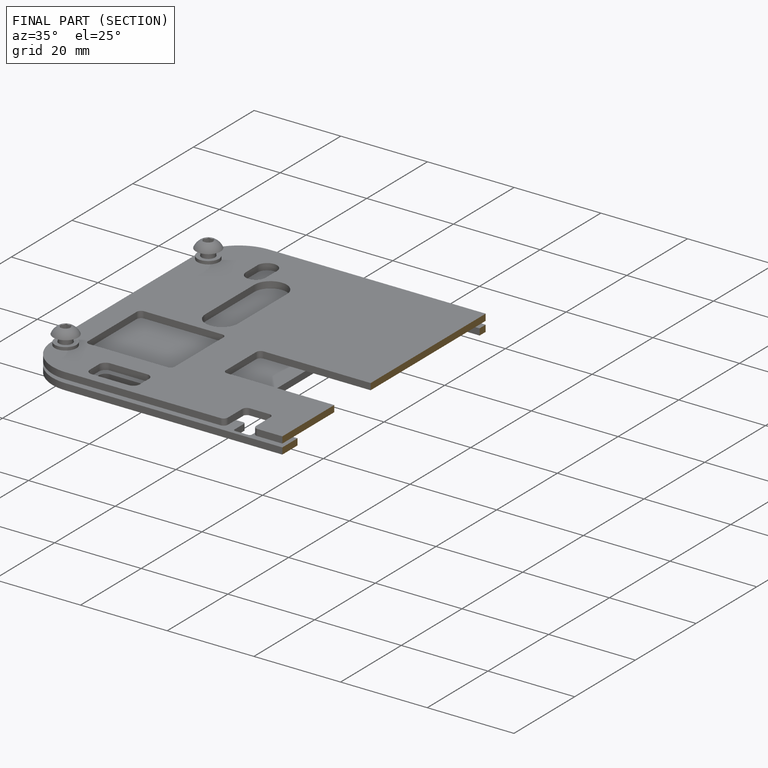
[diagram: finished part — half-section view (interior)]
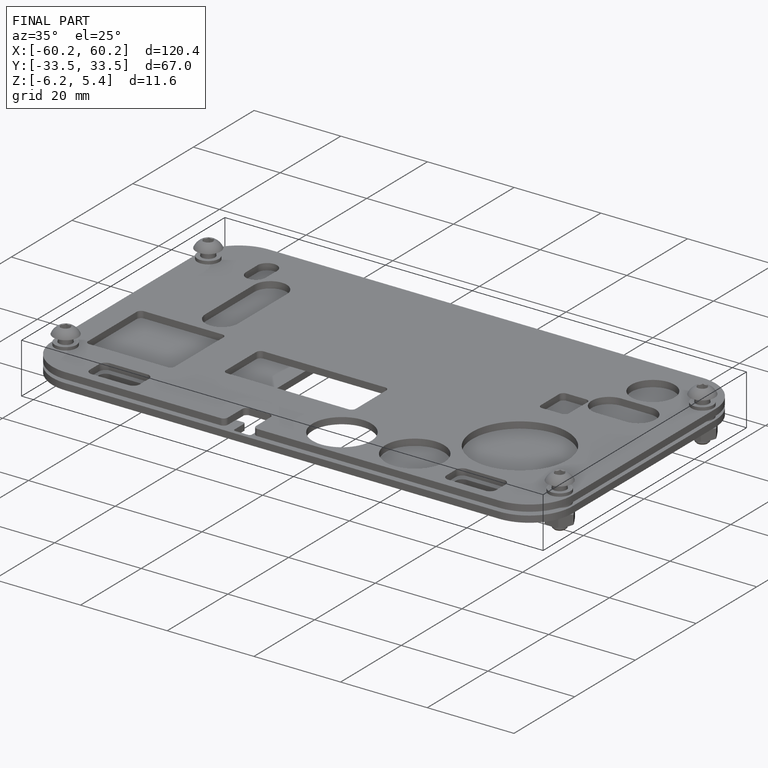
[diagram: finished part — iso view with bounding-box wireframe]
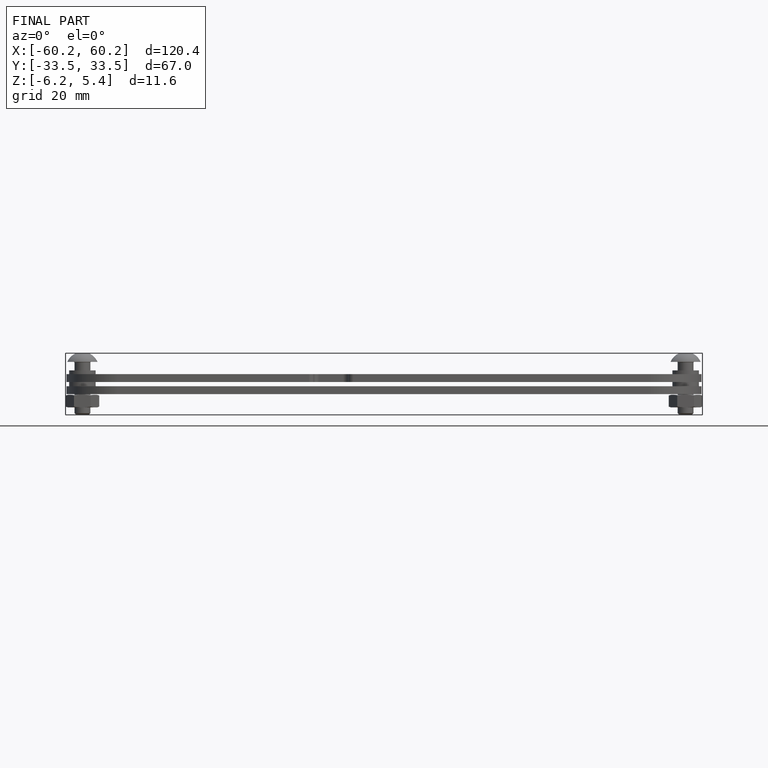
[diagram: finished part — front view with bounding-box wireframe]
